MODEL slx_7448816aff5d
KIND model
BLOCK [SubSystem]  One Robot System
  Ports = [1, 1]
  RequestExecContextInheritance = off
BLOCK [Integrator]  One Robot System/Integrator
  InitialCondition = [.2136; 0.7015\n;pi/3;0;0;0]
  LimitOutput = on
  LowerSaturationLimit = [-inf,-inf,-inf,-0.4,-0.4,-0.5]
  Ports = [1, 1]
  UpperSaturationLimit = [inf,inf,inf,0.4,0.4,0.5]
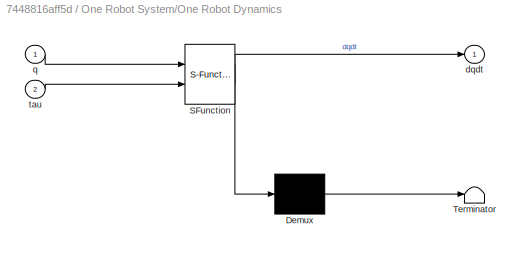
BLOCK [SubSystem]  One Robot System/One Robot Dynamics
  ErrorFcn = Stateflow.Translate.translate
  PermitHierarchicalResolution = ExplicitOnly
  Ports = [2, 1]
  RequestExecContextInheritance = off
  SFBlockType = MATLAB Function
  TreatAsAtomicUnit = on
BLOCK [Demux]  One Robot System/One Robot Dynamics/ Demux 
  Outputs = 1
  Ports = [1, 1]
BLOCK [S-Function]  One Robot System/One Robot Dynamics/ SFunction 
  EnableBusSupport = on
  FunctionName = sf_sfun
  PortCounts = [2 2]
  Ports = [2, 2]
  Tag = Stateflow S-Function OneRobot_Sliding 2
BLOCK [Terminator]  One Robot System/One Robot Dynamics/ Terminator 
BLOCK [Outport]  One Robot System/One Robot Dynamics/dqdt
  IconDisplay = Port number
BLOCK [Inport]  One Robot System/One Robot Dynamics/q
  IconDisplay = Port number
BLOCK [Inport]  One Robot System/One Robot Dynamics/tau
  IconDisplay = Port number
  Port = 2
BLOCK [Inport]  One Robot System/Tau
  IconDisplay = Port number
BLOCK [Outport]  One Robot System/q
  IconDisplay = Port number
BLOCK [Demux] Demux1
  DisplayOption = bar
  Outputs = 3
  Ports = [1, 3]
BLOCK [Demux] Demux2
  DisplayOption = bar
  Outputs = 6
  Ports = [1, 6]
BLOCK [Demux] Demux3
  DisplayOption = bar
  Outputs = 3
  Ports = [1, 3]
BLOCK [Demux] Demux4
  DisplayOption = bar
  Outputs = 3
  Ports = [1, 3]
BLOCK [Derivative] Derivative1
BLOCK [SubSystem] Desired Trajectory
  Ports = [0, 1]
  RequestExecContextInheritance = off
BLOCK [SubSystem] Desired Trajectory/Desired trajectory
  ErrorFcn = Stateflow.Translate.translate
  PermitHierarchicalResolution = ExplicitOnly
  Ports = [1, 1]
  RequestExecContextInheritance = off
  SFBlockType = MATLAB Function
  TreatAsAtomicUnit = on
BLOCK [Demux] Desired Trajectory/Desired trajectory/ Demux 
  Outputs = 1
  Ports = [1, 1]
BLOCK [S-Function] Desired Trajectory/Desired trajectory/ SFunction 
  EnableBusSupport = on
  FunctionName = sf_sfun
  PortCounts = [1 2]
  Ports = [1, 2]
  Tag = Stateflow S-Function OneRobot_Sliding 1
BLOCK [Terminator] Desired Trajectory/Desired trajectory/ Terminator 
BLOCK [Outport] Desired Trajectory/Desired trajectory/q_d
  IconDisplay = Port number
BLOCK [Inport] Desired Trajectory/Desired trajectory/t
  IconDisplay = Port number
BLOCK [Outport] Desired Trajectory/Out1
  IconDisplay = Port number
BLOCK [Clock] Desired Trajectory/Time1
BLOCK [SubSystem] Desired trajectory_dot
  Ports = [0, 1]
  RequestExecContextInheritance = off
BLOCK [SubSystem] Desired trajectory_dot/Desired trajectory_dot
  ErrorFcn = Stateflow.Translate.translate
  PermitHierarchicalResolution = ExplicitOnly
  Ports = [1, 1]
  RequestExecContextInheritance = off
  SFBlockType = MATLAB Function
  TreatAsAtomicUnit = on
BLOCK [Demux] Desired trajectory_dot/Desired trajectory_dot/ Demux 
  Outputs = 1
  Ports = [1, 1]
BLOCK [S-Function] Desired trajectory_dot/Desired trajectory_dot/ SFunction 
  EnableBusSupport = on
  FunctionName = sf_sfun
  PortCounts = [1 2]
  Ports = [1, 2]
  Tag = Stateflow S-Function OneRobot_Sliding 5
BLOCK [Terminator] Desired trajectory_dot/Desired trajectory_dot/ Terminator 
BLOCK [Outport] Desired trajectory_dot/Desired trajectory_dot/q_dot_d
  IconDisplay = Port number
BLOCK [Inport] Desired trajectory_dot/Desired trajectory_dot/t
  IconDisplay = Port number
BLOCK [Clock] Desired trajectory_dot/Time2
BLOCK [Outport] Desired trajectory_dot/q_dot
  IconDisplay = Port number
BLOCK [SubSystem] Desired trajectory_dot_dot
  Ports = [0, 1]
  RequestExecContextInheritance = off
BLOCK [SubSystem] Desired trajectory_dot_dot/Desired trajectory_dot_dot
  ErrorFcn = Stateflow.Translate.translate
  PermitHierarchicalResolution = ExplicitOnly
  Ports = [1, 1]
  RequestExecContextInheritance = off
  SFBlockType = MATLAB Function
  TreatAsAtomicUnit = on
BLOCK [Demux] Desired trajectory_dot_dot/Desired trajectory_dot_dot/ Demux 
  Outputs = 1
  Ports = [1, 1]
BLOCK [S-Function] Desired trajectory_dot_dot/Desired trajectory_dot_dot/ SFunction 
  EnableBusSupport = on
  FunctionName = sf_sfun
  PortCounts = [1 2]
  Ports = [1, 2]
  Tag = Stateflow S-Function OneRobot_Sliding 4
BLOCK [Terminator] Desired trajectory_dot_dot/Desired trajectory_dot_dot/ Terminator 
BLOCK [Outport] Desired trajectory_dot_dot/Desired trajectory_dot_dot/q_dotdot_d
  IconDisplay = Port number
BLOCK [Inport] Desired trajectory_dot_dot/Desired trajectory_dot_dot/t
  IconDisplay = Port number
BLOCK [Outport] Desired trajectory_dot_dot/Out1
  IconDisplay = Port number
BLOCK [Clock] Desired trajectory_dot_dot/Time2
BLOCK [Scope] Error
  Floating = off
  NumInputPorts = 1
  Ports = [1]
  SaveName = ScopeData2
  ShowLegends = off
BLOCK [Scope] Error_dot
  Floating = off
  NumInputPorts = 1
  Ports = [1]
  ShowLegends = off
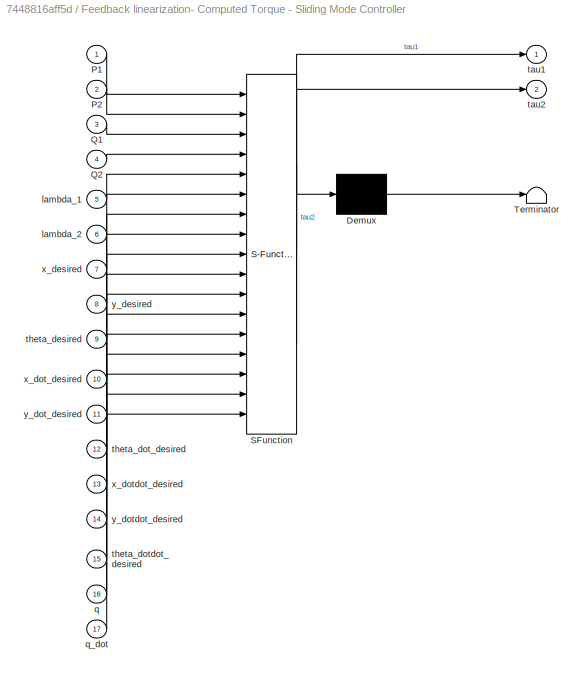
BLOCK [SubSystem] Feedback linearization- Computed Torque - Sliding Mode Controller 
  ErrorFcn = Stateflow.Translate.translate
  PermitHierarchicalResolution = ExplicitOnly
  Ports = [17, 2]
  RequestExecContextInheritance = off
  SFBlockType = MATLAB Function
  TreatAsAtomicUnit = on
BLOCK [Demux] Feedback linearization- Computed Torque - Sliding Mode Controller / Demux 
  Outputs = 1
  Ports = [1, 1]
BLOCK [S-Function] Feedback linearization- Computed Torque - Sliding Mode Controller / SFunction 
  EnableBusSupport = on
  FunctionName = sf_sfun
  PortCounts = [17 3]
  Ports = [17, 3]
  Tag = Stateflow S-Function OneRobot_Sliding 3
BLOCK [Terminator] Feedback linearization- Computed Torque - Sliding Mode Controller / Terminator 
BLOCK [Inport] Feedback linearization- Computed Torque - Sliding Mode Controller /P1
  IconDisplay = Port number
BLOCK [Inport] Feedback linearization- Computed Torque - Sliding Mode Controller /P2
  IconDisplay = Port number
  Port = 2
BLOCK [Inport] Feedback linearization- Computed Torque - Sliding Mode Controller /Q1
  IconDisplay = Port number
  Port = 3
BLOCK [Inport] Feedback linearization- Computed Torque - Sliding Mode Controller /Q2
  IconDisplay = Port number
  Port = 4
BLOCK [Inport] Feedback linearization- Computed Torque - Sliding Mode Controller /lambda_1
  IconDisplay = Port number
  Port = 5
BLOCK [Inport] Feedback linearization- Computed Torque - Sliding Mode Controller /lambda_2
  IconDisplay = Port number
  Port = 6
BLOCK [Inport] Feedback linearization- Computed Torque - Sliding Mode Controller /q
  IconDisplay = Port number
  Port = 16
BLOCK [Inport] Feedback linearization- Computed Torque - Sliding Mode Controller /q_dot
  IconDisplay = Port number
  Port = 17
BLOCK [Outport] Feedback linearization- Computed Torque - Sliding Mode Controller /tau1
  IconDisplay = Port number
BLOCK [Outport] Feedback linearization- Computed Torque - Sliding Mode Controller /tau2
  IconDisplay = Port number
  Port = 2
BLOCK [Inport] Feedback linearization- Computed Torque - Sliding Mode Controller /theta_desired
  IconDisplay = Port number
  Port = 9
BLOCK [Inport] Feedback linearization- Computed Torque - Sliding Mode Controller /theta_dot_desired
  IconDisplay = Port number
  Port = 12
BLOCK [Inport] Feedback linearization- Computed Torque - Sliding Mode Controller /theta_dotdot_desired
  IconDisplay = Port number
  Port = 15
BLOCK [Inport] Feedback linearization- Computed Torque - Sliding Mode Controller /x_desired
  IconDisplay = Port number
  Port = 7
BLOCK [Inport] Feedback linearization- Computed Torque - Sliding Mode Controller /x_dot_desired
  IconDisplay = Port number
  Port = 10
BLOCK [Inport] Feedback linearization- Computed Torque - Sliding Mode Controller /x_dotdot_desired
  IconDisplay = Port number
  Port = 13
BLOCK [Inport] Feedback linearization- Computed Torque - Sliding Mode Controller /y_desired
  IconDisplay = Port number
  Port = 8
BLOCK [Inport] Feedback linearization- Computed Torque - Sliding Mode Controller /y_dot_desired
  IconDisplay = Port number
  Port = 11
BLOCK [Inport] Feedback linearization- Computed Torque - Sliding Mode Controller /y_dotdot_desired
  IconDisplay = Port number
  Port = 14
BLOCK [Mux] Mux
  DisplayOption = bar
  Inputs = 3
  Ports = [3, 1]
BLOCK [Mux] Mux1
  DisplayOption = bar
  Inputs = 2
  Ports = [2, 1]
BLOCK [Mux] Mux2
  DisplayOption = bar
  Inputs = 3
  Ports = [3, 1]
BLOCK [Constant] P1
  Value = 0.02
BLOCK [Constant] P2
  Value = 0.02
BLOCK [Constant] Q1
BLOCK [Constant] Q2
BLOCK [Sum] Sum1
  IconShape = round
  InputSameDT = off
  Inputs = +-|
  OutDataTypeStr = Inherit: Inherit via internal rule
  Ports = [2, 1]
  SaturateOnIntegerOverflow = off
BLOCK [Sum] Sum2
  IconShape = round
  InputSameDT = off
  Inputs = +-|
  OutDataTypeStr = Inherit: Inherit via internal rule
  Ports = [2, 1]
  SaturateOnIntegerOverflow = off
BLOCK [ToWorkspace] To Workspace
  FixptAsFi = on
  MaxDataPoints = inf
  Ports = [1]
  SampleTime = -1
  VariableName = q_oufromSIM
BLOCK [Constant] lambda_1 
  Value = 0.2
BLOCK [Constant] lambda_2
  Value = 0.1
ANNOTATION (root): Sliding Mode Controller for One Robot Considering Non-Holononimic Contraints and Dynamics based on paper " Sliding mode control for trajectory tracking of nonholonomic wheeled mobile robots", Jung-Min Yang et. al Mohammadali Shahriari, <email> PhD Adviser: Dr. Mohammad Biglarbegian Advanced Mechatronics and Robotics Research Group, University of Guelph, Guelph, Canada amrclab.com October 2015
NET  One Robot System/Integrator:1 ->  One Robot System/One Robot Dynamics:1,  One Robot System/q:1
LINE  One Robot System/One Robot Dynamics:1 ->  One Robot System/Integrator:1
LINE  One Robot System/Tau:1 ->  One Robot System/One Robot Dynamics:2
NET  One Robot System:1 -> Demux2:1, Derivative1:1, Feedback linearization- Computed Torque - Sliding Mode Controller :16, To Workspace:1
LINE Demux1:1 -> Feedback linearization- Computed Torque - Sliding Mode Controller :13
LINE Demux1:2 -> Feedback linearization- Computed Torque - Sliding Mode Controller :14
LINE Demux1:3 -> Feedback linearization- Computed Torque - Sliding Mode Controller :15
LINE Demux2:1 -> Mux:1
LINE Demux2:2 -> Mux:2
LINE Demux2:3 -> Mux:3
LINE Demux2:4 -> Mux2:1
LINE Demux2:5 -> Mux2:2
LINE Demux2:6 -> Mux2:3
LINE Demux3:1 -> Feedback linearization- Computed Torque - Sliding Mode Controller :10
LINE Demux3:2 -> Feedback linearization- Computed Torque - Sliding Mode Controller :11
LINE Demux3:3 -> Feedback linearization- Computed Torque - Sliding Mode Controller :12
LINE Demux4:1 -> Feedback linearization- Computed Torque - Sliding Mode Controller :7
LINE Demux4:2 -> Feedback linearization- Computed Torque - Sliding Mode Controller :8
LINE Demux4:3 -> Feedback linearization- Computed Torque - Sliding Mode Controller :9
LINE Derivative1:1 -> Feedback linearization- Computed Torque - Sliding Mode Controller :17
LINE Desired Trajectory/Desired trajectory:1 -> Desired Trajectory/Out1:1
LINE Desired Trajectory/Time1:1 -> Desired Trajectory/Desired trajectory:1
NET Desired Trajectory:1 -> Demux4:1, Sum1:1
LINE Desired trajectory_dot/Desired trajectory_dot:1 -> Desired trajectory_dot/q_dot:1
LINE Desired trajectory_dot/Time2:1 -> Desired trajectory_dot/Desired trajectory_dot:1
NET Desired trajectory_dot:1 -> Demux3:1, Sum2:1
LINE Desired trajectory_dot_dot/Desired trajectory_dot_dot:1 -> Desired trajectory_dot_dot/Out1:1
LINE Desired trajectory_dot_dot/Time2:1 -> Desired trajectory_dot_dot/Desired trajectory_dot_dot:1
LINE Desired trajectory_dot_dot:1 -> Demux1:1
LINE Feedback linearization- Computed Torque - Sliding Mode Controller :1 -> Mux1:1
LINE Feedback linearization- Computed Torque - Sliding Mode Controller :2 -> Mux1:2
LINE Mux1:1 ->  One Robot System:1
LINE Mux2:1 -> Sum2:2
LINE Mux:1 -> Sum1:2
LINE P1:1 -> Feedback linearization- Computed Torque - Sliding Mode Controller :1
LINE P2:1 -> Feedback linearization- Computed Torque - Sliding Mode Controller :2
LINE Q1:1 -> Feedback linearization- Computed Torque - Sliding Mode Controller :3
LINE Q2:1 -> Feedback linearization- Computed Torque - Sliding Mode Controller :4
LINE Sum1:1 -> Error:1
LINE Sum2:1 -> Error_dot:1
LINE lambda_1 :1 -> Feedback linearization- Computed Torque - Sliding Mode Controller :5
LINE lambda_2:1 -> Feedback linearization- Computed Torque - Sliding Mode Controller :6
note: NET lines group one-source signal fan-out (src -> all destinations, sorted); 1:1 wires keep LINE
CHART Desired Trajectory/Desired trajectory states=1 transitions=1
  STATE_LABEL 'eML_blk_kernel()'
  STATE_LABEL 'SCRIPT:\nfunction q_d = fcn(t)\n\nq_d = q_desired(t);'
CHART  One Robot System/One Robot Dynamics states=1 transitions=1
  STATE_LABEL 'eML_blk_kernel()'
  STATE_LABEL 'SCRIPT:\nfunction dqdt= Robot_ode(q,tau)\ndqdt=zeros(6,1);\n% global tau_l tau_r; \ntau_l=tau(1);\ntau_r=tau(2);\n\nx_dot=q(4);\ny_dot=q(5);\ntheta=q(3);\ntheta_dot=q(6);\nq_dotdot = Qdotdot(tau_l,tau_r,theta,theta_dot,x_dot,y_dot);\n\ndqdt(1)=q(4);\ndqdt(2)=q(5);\ndqdt(3)=q(6);\ndqdt(4)=(q_dotdot(1));\ndqdt(5)=(q_dotdot(2));\ndqdt(6)=(q_dotdot(3));\n'
CHART Feedback linearization- Computed Torque - Sliding Mode Controller
 
 states=1 transitions=1
  STATE_LABEL 'eML_blk_kernel()'
  STATE_LABEL 'SCRIPT:\nfunction [tau1,tau2]= controller(P1,P2,Q1,Q2,lambda_1,lambda_2,x_desired,y_desired,theta_desired,x_dot_desired,y_dot_desired,theta_dot_desired, x_dotdot_desired, y_dotdot_desired,theta_dotdot_desired,q,q_dot)\n\ntheta=q(3);\ntheta_dot=q(6);\nx_dotdot=q_dot(4);\ny_dotdot=q_dot(5);\ntheta_dotdot=q_dot(6);\nx=q(1);\ny=q(2);\nx_dot=q(4);\ny_dot=q(5);\nvc=sqrt(x_dot^2+y_dot^2);\n\nu=U_sliding(P1,P2,Q1,Q2,la...<+310ch>'
CHART Desired trajectory_dot_dot/Desired trajectory_dot_dot states=1 transitions=1
  STATE_LABEL 'eML_blk_kernel()'
  STATE_LABEL 'SCRIPT:\nfunction q_dotdot_d = fcn(t)\n\nq_dotdot_d = q_dotdot_desired(t);'
CHART Desired trajectory_dot/Desired trajectory_dot states=1 transitions=1
  STATE_LABEL 'eML_blk_kernel()'
  STATE_LABEL 'SCRIPT:\nfunction q_dot_d = fcn(t)\n\nq_dot_d = q_dot_desired(t);'
